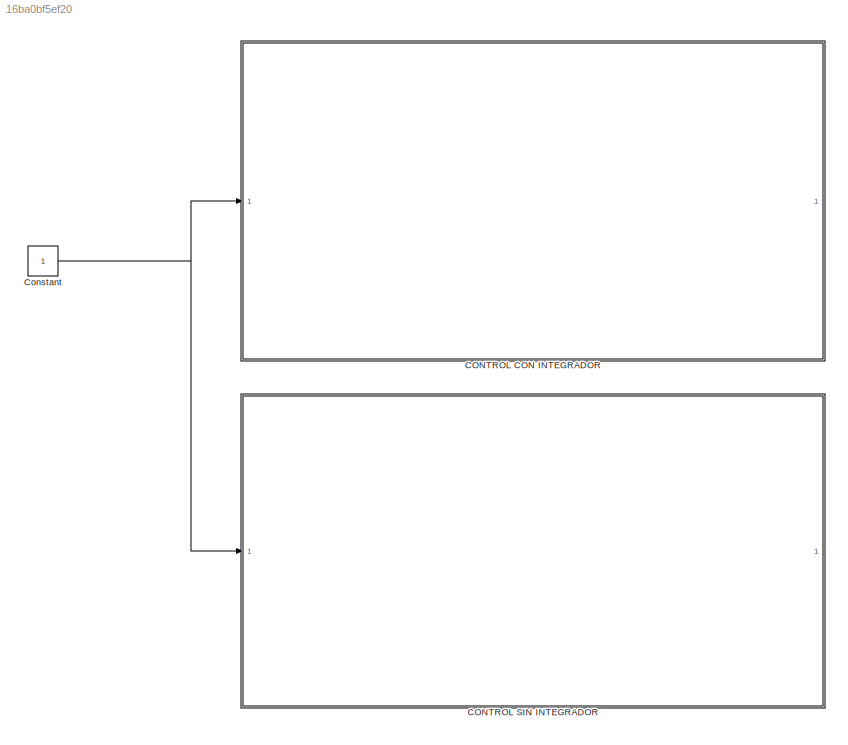
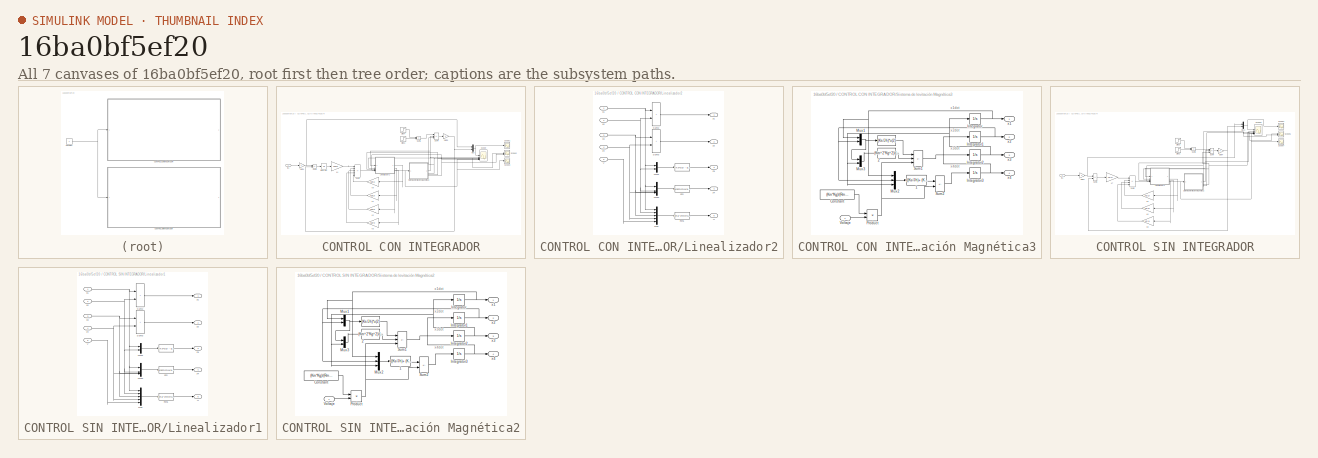
[diagram: thumbnail index - all 7 canvases of the model, root first then tree order]
MODEL slx_16ba0bf5ef20
KIND model
CONFIG AbsTol = auto
CONFIG EnableMultiTasking = on
CONFIG FixedStep = auto
CONFIG MaxStep = auto
CONFIG MinStep = auto
CONFIG RelTol = 1e-3
CONFIG SampleTimeConstraint = Unconstrained
CONFIG SolverName = ode45
CONFIG StartTime = 0.0
CONFIG StopTime = 10
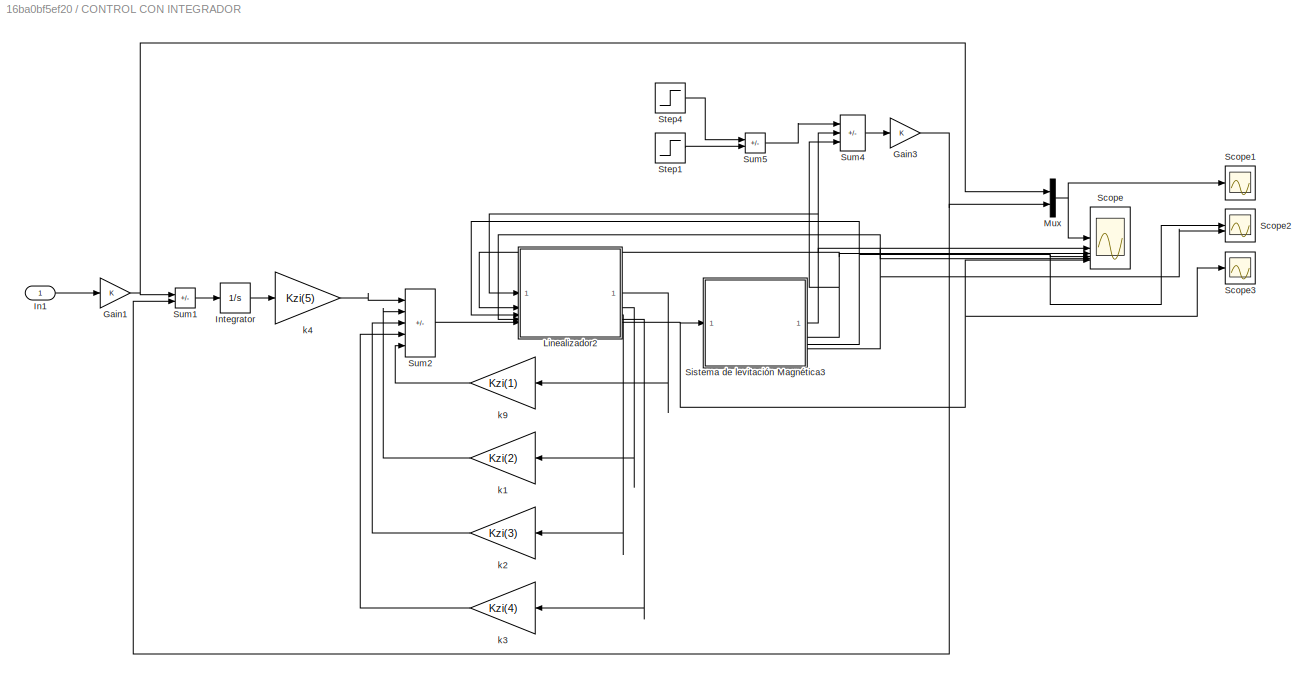
BLOCK [SubSystem] CONTROL CON INTEGRADOR
BLOCK [Gain] CONTROL CON INTEGRADOR/Gain1
BLOCK [Gain] CONTROL CON INTEGRADOR/Gain3
BLOCK [Inport] CONTROL CON INTEGRADOR/In1
BLOCK [Integrator] CONTROL CON INTEGRADOR/Integrator
BLOCK [SubSystem] CONTROL CON INTEGRADOR/Linealizador2
BLOCK [Fcn] CONTROL CON INTEGRADOR/Linealizador2/ 
  Expr = -(Ks*u(2) - g*hcm*m*sin(u(1) + u(2)))/Jl
BLOCK [Fcn] CONTROL CON INTEGRADOR/Linealizador2/Fcn
  Expr = (g*hcm*m*u(3)*cos(u(1)+u(2)))/Jl - u(4)*((Ks/Jl) - (g*hcm*m*cos(u(1)+u(2)))/Jl)
BLOCK [Fcn] CONTROL CON INTEGRADOR/Linealizador2/Fcn1
  Expr = (Jh*Jl^2*Rm*u(5) - Jh*Ks^2*Rm*u(2) - Jl*Ks^2*Rm*u(2) + Jl*Kg^2*Km^2*Ks*u(3) \n- (Jh*Rm*g^2*hcm^2*m^2*sin(2*u(1) + 2*u(2)))/2 + Jh*Ks*Rm*g*hcm*m*sin(u(1) + u(2)) \n+ Jh*Jl*Rm*g*hcm*m*u(3)^2*sin(u(1) + u(2)) + Jh*Jl*Rm*g*hcm*m*u(4)^2*sin(u(1) + u(2)) \n+ Jh*Ks*Rm*g*hcm*m*u(2)*cos(u(1) + u(2)) + 2*Jh*Jl*Rm*g*hcm*m*u(3)*u(4)*sin(u(1) + u(2))) / (Jl*Kg*Km*Ks)
BLOCK [Mux] CONTROL CON INTEGRADOR/Linealizador2/Mux
  DisplayOption = bar
  Inputs = 5
BLOCK [Mux] CONTROL CON INTEGRADOR/Linealizador2/Mux1
  DisplayOption = bar
  Inputs = 2
BLOCK [Mux] CONTROL CON INTEGRADOR/Linealizador2/Mux2
  DisplayOption = bar
BLOCK [Sum] CONTROL CON INTEGRADOR/Linealizador2/Sum2
  IconShape = rectangular
BLOCK [Sum] CONTROL CON INTEGRADOR/Linealizador2/Sum3
  IconShape = rectangular
BLOCK [Outport] CONTROL CON INTEGRADOR/Linealizador2/U
  Port = 5
BLOCK [Inport] CONTROL CON INTEGRADOR/Linealizador2/V
  Port = 5
BLOCK [Inport] CONTROL CON INTEGRADOR/Linealizador2/x1
BLOCK [Inport] CONTROL CON INTEGRADOR/Linealizador2/x2
  Port = 2
BLOCK [Inport] CONTROL CON INTEGRADOR/Linealizador2/x3
  Port = 3
BLOCK [Inport] CONTROL CON INTEGRADOR/Linealizador2/x4
  Port = 4
BLOCK [Outport] CONTROL CON INTEGRADOR/Linealizador2/z1
BLOCK [Outport] CONTROL CON INTEGRADOR/Linealizador2/z2
  Port = 2
BLOCK [Outport] CONTROL CON INTEGRADOR/Linealizador2/z3
  Port = 3
BLOCK [Outport] CONTROL CON INTEGRADOR/Linealizador2/z4
  Port = 4
BLOCK [Mux] CONTROL CON INTEGRADOR/Mux
  DisplayOption = bar
  Inputs = 2
BLOCK [Scope] CONTROL CON INTEGRADOR/Scope
  Floating = off
  NumInputPorts = 6
  ScopeSpecificationString = Simulink.scopes.TimeScopeBlockCfg('CurrentConfiguration', extmgr.ConfigurationSet(extmgr.Configuration('Core','General UI',true,'FigureColor',[0 0 0]),extmgr.Configuration('Core','Source UI',true),extmgr.Configuration('Sources','WiredSimulink',true,'DataLoggingSaveFormat','StructureWithTime','DataLoggingDecimation','1','DataLoggingDecimateData',true),extmgr.Configuration('Visuals','Time Domain',tr...<+6160ch>
BLOCK [Scope] CONTROL CON INTEGRADOR/Scope1
  Floating = off
  NumInputPorts = 1
  ScopeSpecificationString = Simulink.scopes.TimeScopeBlockCfg('CurrentConfiguration', extmgr.ConfigurationSet(extmgr.Configuration('Core','General UI',true),extmgr.Configuration('Core','Source UI',true),extmgr.Configuration('Sources','WiredSimulink',true,'DataLoggingVariableName','x1x2CI','DataLogging',true,'DataLoggingSaveFormat','StructureWithTime'),extmgr.Configuration('Visuals','Time Domain',true,'SerializedDisplays',{st...<+1596ch>
BLOCK [Scope] CONTROL CON INTEGRADOR/Scope2
  Floating = off
  NumInputPorts = 2
  ScopeSpecificationString = Simulink.scopes.TimeScopeBlockCfg('CurrentConfiguration', extmgr.ConfigurationSet(extmgr.Configuration('Core','General UI',true),extmgr.Configuration('Core','Source UI',true),extmgr.Configuration('Sources','WiredSimulink',true,'DataLoggingVariableName','x3x4CI','DataLogging',true,'DataLoggingSaveFormat','StructureWithTime'),extmgr.Configuration('Visuals','Time Domain',true,'SerializedDisplays',{st...<+1770ch>
BLOCK [Scope] CONTROL CON INTEGRADOR/Scope3
  Floating = off
  NumInputPorts = 1
  ScopeSpecificationString = Simulink.scopes.TimeScopeBlockCfg('CurrentConfiguration', extmgr.ConfigurationSet(extmgr.Configuration('Core','General UI',true),extmgr.Configuration('Core','Source UI',true),extmgr.Configuration('Sources','WiredSimulink',true,'DataLoggingVariableName','SenalControlCI','DataLogging',true,'DataLoggingSaveFormat','StructureWithTime'),extmgr.Configuration('Visuals','Time Domain',true,'SerializedDispl...<+1583ch>
BLOCK [SubSystem] CONTROL CON INTEGRADOR/Sistema de levitación Magnética3
BLOCK [Fcn] CONTROL CON INTEGRADOR/Sistema de levitación Magnética3/ 
  Expr = (Ks/Jh)*u(2)
BLOCK [Fcn] CONTROL CON INTEGRADOR/Sistema de levitación Magnética3/ 1
  Expr = -((Ks/Jh)+ (Ks/Jl))*u(2) + (Km^2*Kg^2)/(Rm*Jh)*u(3) + (m*g*hcm/Jl)*sin(u(1) + u(2))
BLOCK [Fcn] CONTROL CON INTEGRADOR/Sistema de levitación Magnética3/ 2
  Expr = (Km^2*Kg^2)/(Rm*Jh)*u(3)
BLOCK [Constant] CONTROL CON INTEGRADOR/Sistema de levitación Magnética3/Constant
  Value = (Km*Kg)/(Rm*Jh)
BLOCK [Integrator] CONTROL CON INTEGRADOR/Sistema de levitación Magnética3/Integrator
  InitialCondition = cix1
BLOCK [Integrator] CONTROL CON INTEGRADOR/Sistema de levitación Magnética3/Integrator1
  InitialCondition = cix2
BLOCK [Integrator] CONTROL CON INTEGRADOR/Sistema de levitación Magnética3/Integrator2
  InitialCondition = cix3
BLOCK [Integrator] CONTROL CON INTEGRADOR/Sistema de levitación Magnética3/Integrator3
  InitialCondition = cix4
BLOCK [Mux] CONTROL CON INTEGRADOR/Sistema de levitación Magnética3/Mux1
  DisplayOption = bar
  Inputs = 2
BLOCK [Mux] CONTROL CON INTEGRADOR/Sistema de levitación Magnética3/Mux2
  DisplayOption = bar
  Inputs = 3
BLOCK [Mux] CONTROL CON INTEGRADOR/Sistema de levitación Magnética3/Mux3
  DisplayOption = bar
  Inputs = 2
BLOCK [Product] CONTROL CON INTEGRADOR/Sistema de levitación Magnética3/Product
  RndMeth = Zero
BLOCK [Sum] CONTROL CON INTEGRADOR/Sistema de levitación Magnética3/Sum1
  IconShape = rectangular
  Inputs = +-+
BLOCK [Sum] CONTROL CON INTEGRADOR/Sistema de levitación Magnética3/Sum2
  IconShape = rectangular
  Inputs = +-
BLOCK [Inport] CONTROL CON INTEGRADOR/Sistema de levitación Magnética3/Voltaje
BLOCK [Outport] CONTROL CON INTEGRADOR/Sistema de levitación Magnética3/x1
BLOCK [Outport] CONTROL CON INTEGRADOR/Sistema de levitación Magnética3/x2
  Port = 2
BLOCK [Outport] CONTROL CON INTEGRADOR/Sistema de levitación Magnética3/x3
  Port = 3
BLOCK [Outport] CONTROL CON INTEGRADOR/Sistema de levitación Magnética3/x4
  Port = 4
BLOCK [Step] CONTROL CON INTEGRADOR/Step1
  After = pert
  SampleTime = 0
  Time = 5
BLOCK [Step] CONTROL CON INTEGRADOR/Step4
  After = pert
  SampleTime = 0
  Time = 5.1
BLOCK [Sum] CONTROL CON INTEGRADOR/Sum1
  IconShape = rectangular
  Inputs = +-
BLOCK [Sum] CONTROL CON INTEGRADOR/Sum2
  IconShape = rectangular
  Inputs = +----
BLOCK [Sum] CONTROL CON INTEGRADOR/Sum4
  IconShape = rectangular
  Inputs = -++
BLOCK [Sum] CONTROL CON INTEGRADOR/Sum5
  IconShape = rectangular
  Inputs = -+
BLOCK [Gain] CONTROL CON INTEGRADOR/k1
  Gain = Kzi(2)
BLOCK [Gain] CONTROL CON INTEGRADOR/k2
  Gain = Kzi(3)
BLOCK [Gain] CONTROL CON INTEGRADOR/k3
  Gain = Kzi(4)
BLOCK [Gain] CONTROL CON INTEGRADOR/k4
  Gain = Kzi(5)
BLOCK [Gain] CONTROL CON INTEGRADOR/k9
  Gain = Kzi(1)
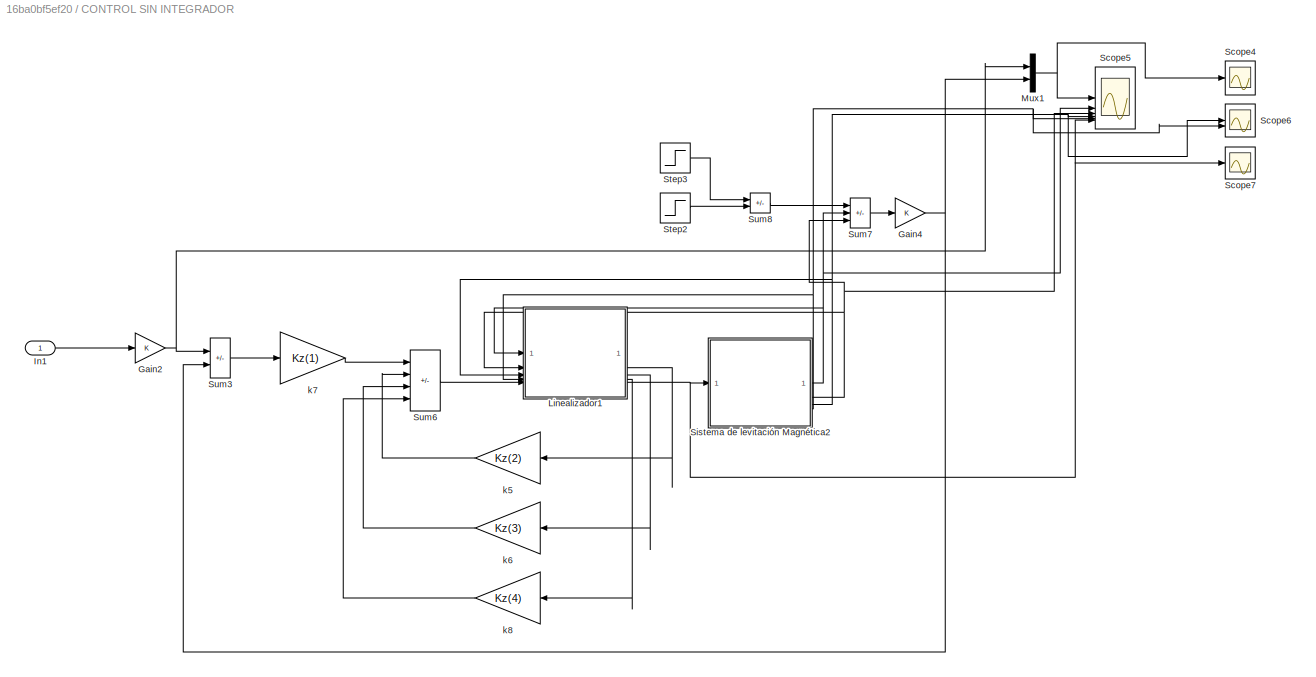
BLOCK [SubSystem] CONTROL SIN INTEGRADOR
BLOCK [Gain] CONTROL SIN INTEGRADOR/Gain2
BLOCK [Gain] CONTROL SIN INTEGRADOR/Gain4
BLOCK [Inport] CONTROL SIN INTEGRADOR/In1
BLOCK [SubSystem] CONTROL SIN INTEGRADOR/Linealizador1
BLOCK [Fcn] CONTROL SIN INTEGRADOR/Linealizador1/ 
  Expr = -(Ks*u(2) - g*hcm*m*sin(u(1) + u(2)))/Jl
BLOCK [Fcn] CONTROL SIN INTEGRADOR/Linealizador1/Fcn
  Expr = (g*hcm*m*u(3)*cos(u(1)+u(2)))/Jl - u(4)*((Ks/Jl) - (g*hcm*m*cos(u(1)+u(2)))/Jl)
BLOCK [Fcn] CONTROL SIN INTEGRADOR/Linealizador1/Fcn1
  Expr = (Jh*Jl^2*Rm*u(5) - Jh*Ks^2*Rm*u(2) - Jl*Ks^2*Rm*u(2) + Jl*Kg^2*Km^2*Ks*u(3) \n- (Jh*Rm*g^2*hcm^2*m^2*sin(2*u(1) + 2*u(2)))/2 + Jh*Ks*Rm*g*hcm*m*sin(u(1) + u(2)) \n+ Jh*Jl*Rm*g*hcm*m*u(3)^2*sin(u(1) + u(2)) + Jh*Jl*Rm*g*hcm*m*u(4)^2*sin(u(1) + u(2)) \n+ Jh*Ks*Rm*g*hcm*m*u(2)*cos(u(1) + u(2)) + 2*Jh*Jl*Rm*g*hcm*m*u(3)*u(4)*sin(u(1) + u(2))) / (Jl*Kg*Km*Ks)
BLOCK [Mux] CONTROL SIN INTEGRADOR/Linealizador1/Mux
  DisplayOption = bar
  Inputs = 5
BLOCK [Mux] CONTROL SIN INTEGRADOR/Linealizador1/Mux1
  DisplayOption = bar
  Inputs = 2
BLOCK [Mux] CONTROL SIN INTEGRADOR/Linealizador1/Mux2
  DisplayOption = bar
BLOCK [Sum] CONTROL SIN INTEGRADOR/Linealizador1/Sum2
  IconShape = rectangular
BLOCK [Sum] CONTROL SIN INTEGRADOR/Linealizador1/Sum3
  IconShape = rectangular
BLOCK [Outport] CONTROL SIN INTEGRADOR/Linealizador1/U
  Port = 5
BLOCK [Inport] CONTROL SIN INTEGRADOR/Linealizador1/V
  Port = 5
BLOCK [Inport] CONTROL SIN INTEGRADOR/Linealizador1/x1
BLOCK [Inport] CONTROL SIN INTEGRADOR/Linealizador1/x2
  Port = 2
BLOCK [Inport] CONTROL SIN INTEGRADOR/Linealizador1/x3
  Port = 3
BLOCK [Inport] CONTROL SIN INTEGRADOR/Linealizador1/x4
  Port = 4
BLOCK [Outport] CONTROL SIN INTEGRADOR/Linealizador1/z1
BLOCK [Outport] CONTROL SIN INTEGRADOR/Linealizador1/z2
  Port = 2
BLOCK [Outport] CONTROL SIN INTEGRADOR/Linealizador1/z3
  Port = 3
BLOCK [Outport] CONTROL SIN INTEGRADOR/Linealizador1/z4
  Port = 4
BLOCK [Mux] CONTROL SIN INTEGRADOR/Mux1
  DisplayOption = bar
  Inputs = 2
BLOCK [Scope] CONTROL SIN INTEGRADOR/Scope4
  Floating = off
  NumInputPorts = 1
  ScopeSpecificationString = Simulink.scopes.TimeScopeBlockCfg('CurrentConfiguration', extmgr.ConfigurationSet(extmgr.Configuration('Core','General UI',true),extmgr.Configuration('Core','Source UI',true),extmgr.Configuration('Sources','WiredSimulink',true,'DataLoggingVariableName','x1x2SI','DataLogging',true,'DataLoggingSaveFormat','StructureWithTime'),extmgr.Configuration('Visuals','Time Domain',true,'SerializedDisplays',{st...<+1573ch>
BLOCK [Scope] CONTROL SIN INTEGRADOR/Scope5
  Floating = off
  NumInputPorts = 6
  ScopeSpecificationString = Simulink.scopes.TimeScopeBlockCfg('CurrentConfiguration', extmgr.ConfigurationSet(extmgr.Configuration('Core','General UI',true,'FigureColor',[0 0 0]),extmgr.Configuration('Core','Source UI',true),extmgr.Configuration('Sources','WiredSimulink',true,'DataLoggingSaveFormat','StructureWithTime','DataLoggingDecimation','1','DataLoggingDecimateData',true,'DataLoggingVariableName','ScopeData2'),extmgr.C...<+6191ch>
BLOCK [Scope] CONTROL SIN INTEGRADOR/Scope6
  Floating = off
  NumInputPorts = 2
  ScopeSpecificationString = Simulink.scopes.TimeScopeBlockCfg('CurrentConfiguration', extmgr.ConfigurationSet(extmgr.Configuration('Core','General UI',true),extmgr.Configuration('Core','Source UI',true),extmgr.Configuration('Sources','WiredSimulink',true,'DataLoggingVariableName','x3x4SI','DataLogging',true,'DataLoggingSaveFormat','StructureWithTime'),extmgr.Configuration('Visuals','Time Domain',true,'SerializedDisplays',{st...<+1770ch>
BLOCK [Scope] CONTROL SIN INTEGRADOR/Scope7
  Floating = off
  NumInputPorts = 1
  ScopeSpecificationString = Simulink.scopes.TimeScopeBlockCfg('CurrentConfiguration', extmgr.ConfigurationSet(extmgr.Configuration('Core','General UI',true),extmgr.Configuration('Core','Source UI',true),extmgr.Configuration('Sources','WiredSimulink',true,'DataLoggingVariableName','SenalControlSI','DataLogging',true,'DataLoggingSaveFormat','StructureWithTime'),extmgr.Configuration('Visuals','Time Domain',true,'SerializedDispl...<+1583ch>
BLOCK [SubSystem] CONTROL SIN INTEGRADOR/Sistema de levitación Magnética2
BLOCK [Fcn] CONTROL SIN INTEGRADOR/Sistema de levitación Magnética2/ 
  Expr = (Ks/Jh)*u(2)
BLOCK [Fcn] CONTROL SIN INTEGRADOR/Sistema de levitación Magnética2/ 1
  Expr = -((Ks/Jh)+ (Ks/Jl))*u(2) + (Km^2*Kg^2)/(Rm*Jh)*u(3) + (m*g*hcm/Jl)*sin(u(1) + u(2))
BLOCK [Fcn] CONTROL SIN INTEGRADOR/Sistema de levitación Magnética2/ 2
  Expr = (Km^2*Kg^2)/(Rm*Jh)*u(3)
BLOCK [Constant] CONTROL SIN INTEGRADOR/Sistema de levitación Magnética2/Constant
  Value = (Km*Kg)/(Rm*Jh)
BLOCK [Integrator] CONTROL SIN INTEGRADOR/Sistema de levitación Magnética2/Integrator
  InitialCondition = cix1
BLOCK [Integrator] CONTROL SIN INTEGRADOR/Sistema de levitación Magnética2/Integrator1
  InitialCondition = cix2
BLOCK [Integrator] CONTROL SIN INTEGRADOR/Sistema de levitación Magnética2/Integrator2
  InitialCondition = cix3
BLOCK [Integrator] CONTROL SIN INTEGRADOR/Sistema de levitación Magnética2/Integrator3
  InitialCondition = cix4
BLOCK [Mux] CONTROL SIN INTEGRADOR/Sistema de levitación Magnética2/Mux1
  DisplayOption = bar
  Inputs = 2
BLOCK [Mux] CONTROL SIN INTEGRADOR/Sistema de levitación Magnética2/Mux2
  DisplayOption = bar
  Inputs = 3
BLOCK [Mux] CONTROL SIN INTEGRADOR/Sistema de levitación Magnética2/Mux3
  DisplayOption = bar
  Inputs = 2
BLOCK [Product] CONTROL SIN INTEGRADOR/Sistema de levitación Magnética2/Product
  RndMeth = Zero
BLOCK [Sum] CONTROL SIN INTEGRADOR/Sistema de levitación Magnética2/Sum1
  IconShape = rectangular
  Inputs = +-+
BLOCK [Sum] CONTROL SIN INTEGRADOR/Sistema de levitación Magnética2/Sum2
  IconShape = rectangular
  Inputs = +-
BLOCK [Inport] CONTROL SIN INTEGRADOR/Sistema de levitación Magnética2/Voltaje
BLOCK [Outport] CONTROL SIN INTEGRADOR/Sistema de levitación Magnética2/x1
BLOCK [Outport] CONTROL SIN INTEGRADOR/Sistema de levitación Magnética2/x2
  Port = 2
BLOCK [Outport] CONTROL SIN INTEGRADOR/Sistema de levitación Magnética2/x3
  Port = 3
BLOCK [Outport] CONTROL SIN INTEGRADOR/Sistema de levitación Magnética2/x4
  Port = 4
BLOCK [Step] CONTROL SIN INTEGRADOR/Step2
  After = pert
  SampleTime = 0
  Time = 5
BLOCK [Step] CONTROL SIN INTEGRADOR/Step3
  After = pert
  SampleTime = 0
  Time = 5.1
BLOCK [Sum] CONTROL SIN INTEGRADOR/Sum3
  IconShape = rectangular
  Inputs = +-
BLOCK [Sum] CONTROL SIN INTEGRADOR/Sum6
  IconShape = rectangular
  Inputs = +---
BLOCK [Sum] CONTROL SIN INTEGRADOR/Sum7
  IconShape = rectangular
  Inputs = -++
BLOCK [Sum] CONTROL SIN INTEGRADOR/Sum8
  IconShape = rectangular
  Inputs = -+
BLOCK [Gain] CONTROL SIN INTEGRADOR/k5
  Gain = Kz(2)
BLOCK [Gain] CONTROL SIN INTEGRADOR/k6
  Gain = Kz(3)
BLOCK [Gain] CONTROL SIN INTEGRADOR/k7
  Gain = Kz(1)
BLOCK [Gain] CONTROL SIN INTEGRADOR/k8
  Gain = Kz(4)
BLOCK [Constant] Constant
ANNOTATION CONTROL CON INTEGRADOR/Sistema de levitación Magnética3: x1dot
ANNOTATION CONTROL CON INTEGRADOR/Sistema de levitación Magnética3: x2dot
ANNOTATION CONTROL CON INTEGRADOR/Sistema de levitación Magnética3: x3dot
ANNOTATION CONTROL CON INTEGRADOR/Sistema de levitación Magnética3: x4dot
ANNOTATION CONTROL SIN INTEGRADOR/Sistema de levitación Magnética2: x1dot
ANNOTATION CONTROL SIN INTEGRADOR/Sistema de levitación Magnética2: x2dot
ANNOTATION CONTROL SIN INTEGRADOR/Sistema de levitación Magnética2: x3dot
ANNOTATION CONTROL SIN INTEGRADOR/Sistema de levitación Magnética2: x4dot
NET CONTROL CON INTEGRADOR/Gain1:1 -> CONTROL CON INTEGRADOR/Mux:1, CONTROL CON INTEGRADOR/Sum1:1
NET CONTROL CON INTEGRADOR/Gain3:1 -> CONTROL CON INTEGRADOR/Mux:2, CONTROL CON INTEGRADOR/Sum1:2
LINE CONTROL CON INTEGRADOR/In1:1 -> CONTROL CON INTEGRADOR/Gain1:1
LINE CONTROL CON INTEGRADOR/Integrator:1 -> CONTROL CON INTEGRADOR/k4:1
LINE CONTROL CON INTEGRADOR/Linealizador2/ :1 -> CONTROL CON INTEGRADOR/Linealizador2/z3:1
LINE CONTROL CON INTEGRADOR/Linealizador2/Fcn1:1 -> CONTROL CON INTEGRADOR/Linealizador2/U:1
LINE CONTROL CON INTEGRADOR/Linealizador2/Fcn:1 -> CONTROL CON INTEGRADOR/Linealizador2/z4:1
LINE CONTROL CON INTEGRADOR/Linealizador2/Mux1:1 -> CONTROL CON INTEGRADOR/Linealizador2/ :1
LINE CONTROL CON INTEGRADOR/Linealizador2/Mux2:1 -> CONTROL CON INTEGRADOR/Linealizador2/Fcn:1
LINE CONTROL CON INTEGRADOR/Linealizador2/Mux:1 -> CONTROL CON INTEGRADOR/Linealizador2/Fcn1:1
LINE CONTROL CON INTEGRADOR/Linealizador2/Sum2:1 -> CONTROL CON INTEGRADOR/Linealizador2/z1:1
LINE CONTROL CON INTEGRADOR/Linealizador2/Sum3:1 -> CONTROL CON INTEGRADOR/Linealizador2/z2:1
LINE CONTROL CON INTEGRADOR/Linealizador2/V:1 -> CONTROL CON INTEGRADOR/Linealizador2/Mux:5
NET CONTROL CON INTEGRADOR/Linealizador2/x1:1 -> CONTROL CON INTEGRADOR/Linealizador2/Mux1:1, CONTROL CON INTEGRADOR/Linealizador2/Mux2:1, CONTROL CON INTEGRADOR/Linealizador2/Mux:1, CONTROL CON INTEGRADOR/Linealizador2/Sum2:1
NET CONTROL CON INTEGRADOR/Linealizador2/x2:1 -> CONTROL CON INTEGRADOR/Linealizador2/Mux1:2, CONTROL CON INTEGRADOR/Linealizador2/Mux2:2, CONTROL CON INTEGRADOR/Linealizador2/Mux:2, CONTROL CON INTEGRADOR/Linealizador2/Sum2:2
NET CONTROL CON INTEGRADOR/Linealizador2/x3:1 -> CONTROL CON INTEGRADOR/Linealizador2/Mux2:3, CONTROL CON INTEGRADOR/Linealizador2/Mux:3, CONTROL CON INTEGRADOR/Linealizador2/Sum3:1
NET CONTROL CON INTEGRADOR/Linealizador2/x4:1 -> CONTROL CON INTEGRADOR/Linealizador2/Mux2:4, CONTROL CON INTEGRADOR/Linealizador2/Mux:4, CONTROL CON INTEGRADOR/Linealizador2/Sum3:2
LINE CONTROL CON INTEGRADOR/Linealizador2:1 -> CONTROL CON INTEGRADOR/k9:1
LINE CONTROL CON INTEGRADOR/Linealizador2:2 -> CONTROL CON INTEGRADOR/k1:1
LINE CONTROL CON INTEGRADOR/Linealizador2:3 -> CONTROL CON INTEGRADOR/k2:1
LINE CONTROL CON INTEGRADOR/Linealizador2:4 -> CONTROL CON INTEGRADOR/k3:1
NET CONTROL CON INTEGRADOR/Linealizador2:5 -> CONTROL CON INTEGRADOR/Scope3:1, CONTROL CON INTEGRADOR/Scope:6, CONTROL CON INTEGRADOR/Sistema de levitación Magnética3:1
NET CONTROL CON INTEGRADOR/Mux:1 -> CONTROL CON INTEGRADOR/Scope1:1, CONTROL CON INTEGRADOR/Scope:1
LINE CONTROL CON INTEGRADOR/Sistema de levitación Magnética3/ 1:1 -> CONTROL CON INTEGRADOR/Sistema de levitación Magnética3/Sum2:1
LINE CONTROL CON INTEGRADOR/Sistema de levitación Magnética3/ 2:1 -> CONTROL CON INTEGRADOR/Sistema de levitación Magnética3/Sum1:2
LINE CONTROL CON INTEGRADOR/Sistema de levitación Magnética3/ :1 -> CONTROL CON INTEGRADOR/Sistema de levitación Magnética3/Sum1:1
LINE CONTROL CON INTEGRADOR/Sistema de levitación Magnética3/Constant:1 -> CONTROL CON INTEGRADOR/Sistema de levitación Magnética3/Product:1
NET CONTROL CON INTEGRADOR/Sistema de levitación Magnética3/Integrator1:1 -> CONTROL CON INTEGRADOR/Sistema de levitación Magnética3/Mux1:2, CONTROL CON INTEGRADOR/Sistema de levitación Magnética3/Mux2:2, CONTROL CON INTEGRADOR/Sistema de levitación Magnética3/x2:1
NET CONTROL CON INTEGRADOR/Sistema de levitación Magnética3/Integrator2:1 -> CONTROL CON INTEGRADOR/Sistema de levitación Magnética3/Integrator:1, CONTROL CON INTEGRADOR/Sistema de levitación Magnética3/Mux2:3, CONTROL CON INTEGRADOR/Sistema de levitación Magnética3/Mux3:2, CONTROL CON INTEGRADOR/Sistema de levitación Magnética3/x3:1
NET CONTROL CON INTEGRADOR/Sistema de levitación Magnética3/Integrator3:1 -> CONTROL CON INTEGRADOR/Sistema de levitación Magnética3/Integrator1:1, CONTROL CON INTEGRADOR/Sistema de levitación Magnética3/x4:1
NET CONTROL CON INTEGRADOR/Sistema de levitación Magnética3/Integrator:1 -> CONTROL CON INTEGRADOR/Sistema de levitación Magnética3/Mux1:1, CONTROL CON INTEGRADOR/Sistema de levitación Magnética3/Mux2:1, CONTROL CON INTEGRADOR/Sistema de levitación Magnética3/x1:1
NET CONTROL CON INTEGRADOR/Sistema de levitación Magnética3/Mux1:1 -> CONTROL CON INTEGRADOR/Sistema de levitación Magnética3/ :1, CONTROL CON INTEGRADOR/Sistema de levitación Magnética3/Mux3:1
LINE CONTROL CON INTEGRADOR/Sistema de levitación Magnética3/Mux2:1 -> CONTROL CON INTEGRADOR/Sistema de levitación Magnética3/ 1:1
LINE CONTROL CON INTEGRADOR/Sistema de levitación Magnética3/Mux3:1 -> CONTROL CON INTEGRADOR/Sistema de levitación Magnética3/ 2:1
NET CONTROL CON INTEGRADOR/Sistema de levitación Magnética3/Product:1 -> CONTROL CON INTEGRADOR/Sistema de levitación Magnética3/Sum1:3, CONTROL CON INTEGRADOR/Sistema de levitación Magnética3/Sum2:2
LINE CONTROL CON INTEGRADOR/Sistema de levitación Magnética3/Sum1:1 -> CONTROL CON INTEGRADOR/Sistema de levitación Magnética3/Integrator2:1
LINE CONTROL CON INTEGRADOR/Sistema de levitación Magnética3/Sum2:1 -> CONTROL CON INTEGRADOR/Sistema de levitación Magnética3/Integrator3:1
LINE CONTROL CON INTEGRADOR/Sistema de levitación Magnética3/Voltaje:1 -> CONTROL CON INTEGRADOR/Sistema de levitación Magnética3/Product:2
NET CONTROL CON INTEGRADOR/Sistema de levitación Magnética3:1 -> CONTROL CON INTEGRADOR/Linealizador2:1, CONTROL CON INTEGRADOR/Scope:2, CONTROL CON INTEGRADOR/Sum4:2
NET CONTROL CON INTEGRADOR/Sistema de levitación Magnética3:2 -> CONTROL CON INTEGRADOR/Linealizador2:2, CONTROL CON INTEGRADOR/Scope:3, CONTROL CON INTEGRADOR/Sum4:3
NET CONTROL CON INTEGRADOR/Sistema de levitación Magnética3:3 -> CONTROL CON INTEGRADOR/Linealizador2:3, CONTROL CON INTEGRADOR/Scope2:1, CONTROL CON INTEGRADOR/Scope:4
NET CONTROL CON INTEGRADOR/Sistema de levitación Magnética3:4 -> CONTROL CON INTEGRADOR/Linealizador2:4, CONTROL CON INTEGRADOR/Scope2:2, CONTROL CON INTEGRADOR/Scope:5
LINE CONTROL CON INTEGRADOR/Step1:1 -> CONTROL CON INTEGRADOR/Sum5:2
LINE CONTROL CON INTEGRADOR/Step4:1 -> CONTROL CON INTEGRADOR/Sum5:1
LINE CONTROL CON INTEGRADOR/Sum1:1 -> CONTROL CON INTEGRADOR/Integrator:1
LINE CONTROL CON INTEGRADOR/Sum2:1 -> CONTROL CON INTEGRADOR/Linealizador2:5
LINE CONTROL CON INTEGRADOR/Sum4:1 -> CONTROL CON INTEGRADOR/Gain3:1
LINE CONTROL CON INTEGRADOR/Sum5:1 -> CONTROL CON INTEGRADOR/Sum4:1
LINE CONTROL CON INTEGRADOR/k1:1 -> CONTROL CON INTEGRADOR/Sum2:2
LINE CONTROL CON INTEGRADOR/k2:1 -> CONTROL CON INTEGRADOR/Sum2:3
LINE CONTROL CON INTEGRADOR/k3:1 -> CONTROL CON INTEGRADOR/Sum2:4
LINE CONTROL CON INTEGRADOR/k4:1 -> CONTROL CON INTEGRADOR/Sum2:1
LINE CONTROL CON INTEGRADOR/k9:1 -> CONTROL CON INTEGRADOR/Sum2:5
NET CONTROL SIN INTEGRADOR/Gain2:1 -> CONTROL SIN INTEGRADOR/Mux1:1, CONTROL SIN INTEGRADOR/Sum3:1
NET CONTROL SIN INTEGRADOR/Gain4:1 -> CONTROL SIN INTEGRADOR/Mux1:2, CONTROL SIN INTEGRADOR/Sum3:2
LINE CONTROL SIN INTEGRADOR/In1:1 -> CONTROL SIN INTEGRADOR/Gain2:1
LINE CONTROL SIN INTEGRADOR/Linealizador1/ :1 -> CONTROL SIN INTEGRADOR/Linealizador1/z3:1
LINE CONTROL SIN INTEGRADOR/Linealizador1/Fcn1:1 -> CONTROL SIN INTEGRADOR/Linealizador1/U:1
LINE CONTROL SIN INTEGRADOR/Linealizador1/Fcn:1 -> CONTROL SIN INTEGRADOR/Linealizador1/z4:1
LINE CONTROL SIN INTEGRADOR/Linealizador1/Mux1:1 -> CONTROL SIN INTEGRADOR/Linealizador1/ :1
LINE CONTROL SIN INTEGRADOR/Linealizador1/Mux2:1 -> CONTROL SIN INTEGRADOR/Linealizador1/Fcn:1
LINE CONTROL SIN INTEGRADOR/Linealizador1/Mux:1 -> CONTROL SIN INTEGRADOR/Linealizador1/Fcn1:1
LINE CONTROL SIN INTEGRADOR/Linealizador1/Sum2:1 -> CONTROL SIN INTEGRADOR/Linealizador1/z1:1
LINE CONTROL SIN INTEGRADOR/Linealizador1/Sum3:1 -> CONTROL SIN INTEGRADOR/Linealizador1/z2:1
LINE CONTROL SIN INTEGRADOR/Linealizador1/V:1 -> CONTROL SIN INTEGRADOR/Linealizador1/Mux:5
NET CONTROL SIN INTEGRADOR/Linealizador1/x1:1 -> CONTROL SIN INTEGRADOR/Linealizador1/Mux1:1, CONTROL SIN INTEGRADOR/Linealizador1/Mux2:1, CONTROL SIN INTEGRADOR/Linealizador1/Mux:1, CONTROL SIN INTEGRADOR/Linealizador1/Sum2:1
NET CONTROL SIN INTEGRADOR/Linealizador1/x2:1 -> CONTROL SIN INTEGRADOR/Linealizador1/Mux1:2, CONTROL SIN INTEGRADOR/Linealizador1/Mux2:2, CONTROL SIN INTEGRADOR/Linealizador1/Mux:2, CONTROL SIN INTEGRADOR/Linealizador1/Sum2:2
NET CONTROL SIN INTEGRADOR/Linealizador1/x3:1 -> CONTROL SIN INTEGRADOR/Linealizador1/Mux2:3, CONTROL SIN INTEGRADOR/Linealizador1/Mux:3, CONTROL SIN INTEGRADOR/Linealizador1/Sum3:1
NET CONTROL SIN INTEGRADOR/Linealizador1/x4:1 -> CONTROL SIN INTEGRADOR/Linealizador1/Mux2:4, CONTROL SIN INTEGRADOR/Linealizador1/Mux:4, CONTROL SIN INTEGRADOR/Linealizador1/Sum3:2
LINE CONTROL SIN INTEGRADOR/Linealizador1:2 -> CONTROL SIN INTEGRADOR/k5:1
LINE CONTROL SIN INTEGRADOR/Linealizador1:3 -> CONTROL SIN INTEGRADOR/k6:1
LINE CONTROL SIN INTEGRADOR/Linealizador1:4 -> CONTROL SIN INTEGRADOR/k8:1
NET CONTROL SIN INTEGRADOR/Linealizador1:5 -> CONTROL SIN INTEGRADOR/Scope5:6, CONTROL SIN INTEGRADOR/Scope7:1, CONTROL SIN INTEGRADOR/Sistema de levitación Magnética2:1
NET CONTROL SIN INTEGRADOR/Mux1:1 -> CONTROL SIN INTEGRADOR/Scope4:1, CONTROL SIN INTEGRADOR/Scope5:1
LINE CONTROL SIN INTEGRADOR/Sistema de levitación Magnética2/ 1:1 -> CONTROL SIN INTEGRADOR/Sistema de levitación Magnética2/Sum2:1
LINE CONTROL SIN INTEGRADOR/Sistema de levitación Magnética2/ 2:1 -> CONTROL SIN INTEGRADOR/Sistema de levitación Magnética2/Sum1:2
LINE CONTROL SIN INTEGRADOR/Sistema de levitación Magnética2/ :1 -> CONTROL SIN INTEGRADOR/Sistema de levitación Magnética2/Sum1:1
LINE CONTROL SIN INTEGRADOR/Sistema de levitación Magnética2/Constant:1 -> CONTROL SIN INTEGRADOR/Sistema de levitación Magnética2/Product:1
NET CONTROL SIN INTEGRADOR/Sistema de levitación Magnética2/Integrator1:1 -> CONTROL SIN INTEGRADOR/Sistema de levitación Magnética2/Mux1:2, CONTROL SIN INTEGRADOR/Sistema de levitación Magnética2/Mux2:2, CONTROL SIN INTEGRADOR/Sistema de levitación Magnética2/x2:1
NET CONTROL SIN INTEGRADOR/Sistema de levitación Magnética2/Integrator2:1 -> CONTROL SIN INTEGRADOR/Sistema de levitación Magnética2/Integrator:1, CONTROL SIN INTEGRADOR/Sistema de levitación Magnética2/Mux2:3, CONTROL SIN INTEGRADOR/Sistema de levitación Magnética2/Mux3:2, CONTROL SIN INTEGRADOR/Sistema de levitación Magnética2/x3:1
NET CONTROL SIN INTEGRADOR/Sistema de levitación Magnética2/Integrator3:1 -> CONTROL SIN INTEGRADOR/Sistema de levitación Magnética2/Integrator1:1, CONTROL SIN INTEGRADOR/Sistema de levitación Magnética2/x4:1
NET CONTROL SIN INTEGRADOR/Sistema de levitación Magnética2/Integrator:1 -> CONTROL SIN INTEGRADOR/Sistema de levitación Magnética2/Mux1:1, CONTROL SIN INTEGRADOR/Sistema de levitación Magnética2/Mux2:1, CONTROL SIN INTEGRADOR/Sistema de levitación Magnética2/x1:1
NET CONTROL SIN INTEGRADOR/Sistema de levitación Magnética2/Mux1:1 -> CONTROL SIN INTEGRADOR/Sistema de levitación Magnética2/ :1, CONTROL SIN INTEGRADOR/Sistema de levitación Magnética2/Mux3:1
LINE CONTROL SIN INTEGRADOR/Sistema de levitación Magnética2/Mux2:1 -> CONTROL SIN INTEGRADOR/Sistema de levitación Magnética2/ 1:1
LINE CONTROL SIN INTEGRADOR/Sistema de levitación Magnética2/Mux3:1 -> CONTROL SIN INTEGRADOR/Sistema de levitación Magnética2/ 2:1
NET CONTROL SIN INTEGRADOR/Sistema de levitación Magnética2/Product:1 -> CONTROL SIN INTEGRADOR/Sistema de levitación Magnética2/Sum1:3, CONTROL SIN INTEGRADOR/Sistema de levitación Magnética2/Sum2:2
LINE CONTROL SIN INTEGRADOR/Sistema de levitación Magnética2/Sum1:1 -> CONTROL SIN INTEGRADOR/Sistema de levitación Magnética2/Integrator2:1
LINE CONTROL SIN INTEGRADOR/Sistema de levitación Magnética2/Sum2:1 -> CONTROL SIN INTEGRADOR/Sistema de levitación Magnética2/Integrator3:1
LINE CONTROL SIN INTEGRADOR/Sistema de levitación Magnética2/Voltaje:1 -> CONTROL SIN INTEGRADOR/Sistema de levitación Magnética2/Product:2
NET CONTROL SIN INTEGRADOR/Sistema de levitación Magnética2:1 -> CONTROL SIN INTEGRADOR/Linealizador1:1, CONTROL SIN INTEGRADOR/Scope5:2, CONTROL SIN INTEGRADOR/Sum7:2
NET CONTROL SIN INTEGRADOR/Sistema de levitación Magnética2:2 -> CONTROL SIN INTEGRADOR/Linealizador1:2, CONTROL SIN INTEGRADOR/Scope5:3, CONTROL SIN INTEGRADOR/Sum7:3
NET CONTROL SIN INTEGRADOR/Sistema de levitación Magnética2:3 -> CONTROL SIN INTEGRADOR/Linealizador1:3, CONTROL SIN INTEGRADOR/Scope5:4, CONTROL SIN INTEGRADOR/Scope6:1
NET CONTROL SIN INTEGRADOR/Sistema de levitación Magnética2:4 -> CONTROL SIN INTEGRADOR/Linealizador1:4, CONTROL SIN INTEGRADOR/Scope5:5, CONTROL SIN INTEGRADOR/Scope6:2
LINE CONTROL SIN INTEGRADOR/Step2:1 -> CONTROL SIN INTEGRADOR/Sum8:2
LINE CONTROL SIN INTEGRADOR/Step3:1 -> CONTROL SIN INTEGRADOR/Sum8:1
LINE CONTROL SIN INTEGRADOR/Sum3:1 -> CONTROL SIN INTEGRADOR/k7:1
LINE CONTROL SIN INTEGRADOR/Sum6:1 -> CONTROL SIN INTEGRADOR/Linealizador1:5
LINE CONTROL SIN INTEGRADOR/Sum7:1 -> CONTROL SIN INTEGRADOR/Gain4:1
LINE CONTROL SIN INTEGRADOR/Sum8:1 -> CONTROL SIN INTEGRADOR/Sum7:1
LINE CONTROL SIN INTEGRADOR/k5:1 -> CONTROL SIN INTEGRADOR/Sum6:2
LINE CONTROL SIN INTEGRADOR/k6:1 -> CONTROL SIN INTEGRADOR/Sum6:3
LINE CONTROL SIN INTEGRADOR/k7:1 -> CONTROL SIN INTEGRADOR/Sum6:1
LINE CONTROL SIN INTEGRADOR/k8:1 -> CONTROL SIN INTEGRADOR/Sum6:4
NET Constant:1 -> CONTROL CON INTEGRADOR:1, CONTROL SIN INTEGRADOR:1
note: NET lines group one-source signal fan-out (src -> all destinations, sorted); 1:1 wires keep LINE
